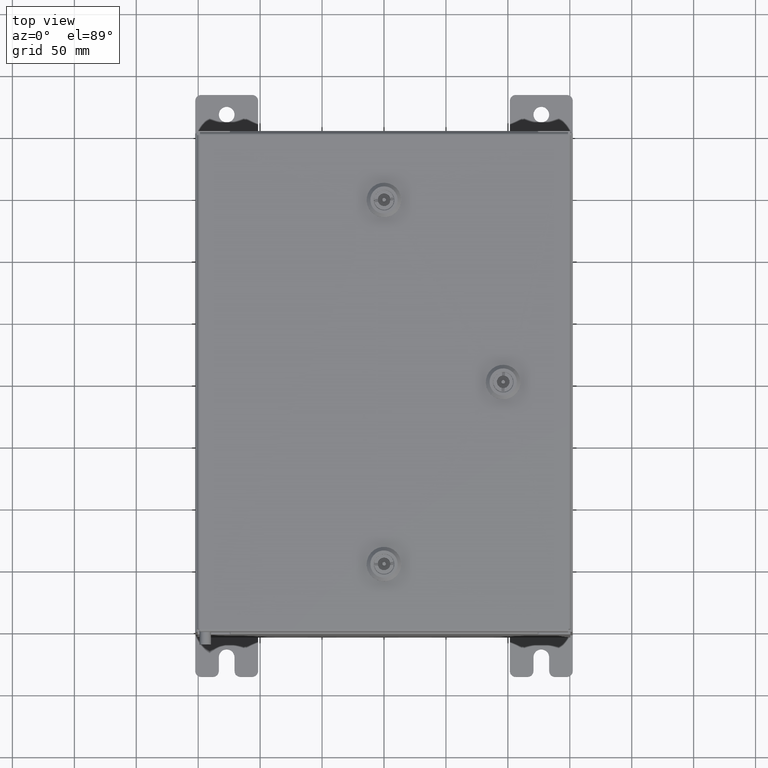
[diagram: clean part render]
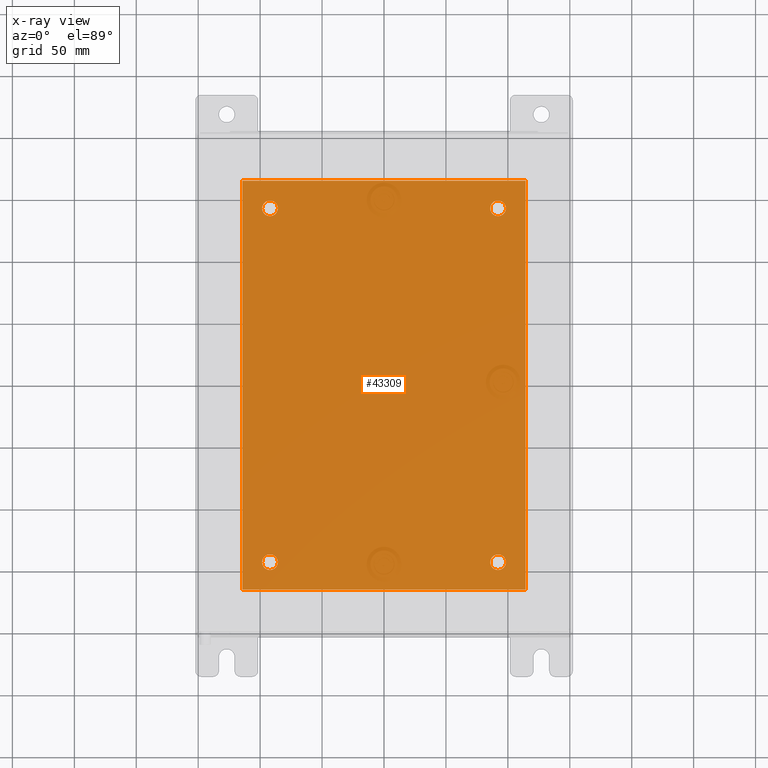
[diagram: x-ray — body ghosted, one internal face saturated and labeled with its STEP entity id]
A machine part, top view, then the same camera in x-ray: the body is ghosted and one INTERNAL B-rep face — a face not visible from any outside direction — is saturated and labeled: STEP entity #43309.
In plain terms, the highlighted planar face has unit normal (0, 0, -1).
Its self-contained STEP definition (entity closure, byte-faithful):
#202 = CARTESIAN_POINT ( 'NONE',  ( -3.875000000000000000, -5.625000000000003600, -0.1039999999999999800 ) ) ;
#738 = DIRECTION ( 'NONE',  ( -1.000000000000000000, 0.0000000000000000000, 0.0000000000000000000 ) ) ;
#1234 = VERTEX_POINT ( 'NONE', #14153 ) ;
#1312 = VECTOR ( 'NONE', #46536, 39.37007874015748100 ) ;
#2422 = VERTEX_POINT ( 'NONE', #23166 ) ;
#2606 = EDGE_CURVE ( 'NONE', #1234, #35636, #38056, .T. ) ;
#3452 = CARTESIAN_POINT ( 'NONE',  ( -4.499999999999998200, 6.500000000000000900, -0.1039999999999999800 ) ) ;
#3638 = LINE ( 'NONE', #42720, #40114 ) ;
#3713 = CIRCLE ( 'NONE', #48493, 0.2499999999999998100 ) ;
#4463 = CARTESIAN_POINT ( 'NONE',  ( -3.625000000000000400, -5.625000000000003600, -0.1039999999999999800 ) ) ;
#6095 = CARTESIAN_POINT ( 'NONE',  ( -3.625000000000000400, -5.625000000000003600, -0.1039999999999999800 ) ) ;
#7248 = AXIS2_PLACEMENT_3D ( 'NONE', #4463, #37719, #9212 ) ;
#7479 = EDGE_CURVE ( 'NONE', #19775, #10276, #39264, .T. ) ;
#8386 = ORIENTED_EDGE ( 'NONE', *, *, #39971, .T. ) ;
#8613 = FACE_BOUND ( 'NONE', #55634, .T. ) ;
#9212 = DIRECTION ( 'NONE',  ( -1.000000000000000000, 0.0000000000000000000, 0.0000000000000000000 ) ) ;
#9740 = PLANE ( 'NONE',  #52028 ) ;
#9763 = EDGE_CURVE ( 'NONE', #57261, #2422, #36509, .T. ) ;
#9880 = VERTEX_POINT ( 'NONE', #47507 ) ;
#9894 = CARTESIAN_POINT ( 'NONE',  ( -4.499999999999998200, 6.500000000000000900, -0.1039999999999999800 ) ) ;
#10000 = AXIS2_PLACEMENT_3D ( 'NONE', #22978, #56336, #27744 ) ;
#10276 = VERTEX_POINT ( 'NONE', #44786 ) ;
#10840 = DIRECTION ( 'NONE',  ( -1.000000000000000000, 0.0000000000000000000, 0.0000000000000000000 ) ) ;
#11326 = EDGE_CURVE ( 'NONE', #31851, #9880, #3713, .T. ) ;
#11809 = ORIENTED_EDGE ( 'NONE', *, *, #7479, .F. ) ;
#12419 = CARTESIAN_POINT ( 'NONE',  ( -3.625000000000000400, 5.625000000000003600, -0.1039999999999999800 ) ) ;
#13395 = VERTEX_POINT ( 'NONE', #37003 ) ;
#14153 = CARTESIAN_POINT ( 'NONE',  ( 4.500000000000001800, 6.500000000000000900, -0.1039999999999999800 ) ) ;
#14764 = CARTESIAN_POINT ( 'NONE',  ( 3.625000000000000400, 5.625000000000003600, -0.1039999999999999800 ) ) ;
#17210 = DIRECTION ( 'NONE',  ( -1.000000000000000000, 0.0000000000000000000, 0.0000000000000000000 ) ) ;
#18112 = EDGE_LOOP ( 'NONE', ( #26507, #8386 ) ) ;
#18358 = CARTESIAN_POINT ( 'NONE',  ( 3.625000000000000400, -5.625000000000003600, -0.1039999999999999800 ) ) ;
#18546 = CIRCLE ( 'NONE', #29706, 0.2499999999999987000 ) ;
#18653 = VERTEX_POINT ( 'NONE', #202 ) ;
#19301 = CARTESIAN_POINT ( 'NONE',  ( -4.499999999999998200, -6.499999999999999100, -0.1039999999999999800 ) ) ;
#19319 = DIRECTION ( 'NONE',  ( 0.0000000000000000000, 0.0000000000000000000, -1.000000000000000000 ) ) ;
#19566 = DIRECTION ( 'NONE',  ( -1.000000000000000000, 0.0000000000000000000, 0.0000000000000000000 ) ) ;
#19775 = VERTEX_POINT ( 'NONE', #19301 ) ;
#20117 = DIRECTION ( 'NONE',  ( -0.0000000000000000000, -1.000000000000000000, -0.0000000000000000000 ) ) ;
#21031 = ORIENTED_EDGE ( 'NONE', *, *, #22742, .F. ) ;
#21314 = FACE_BOUND ( 'NONE', #18112, .T. ) ;
#22742 = EDGE_CURVE ( 'NONE', #35636, #19775, #39839, .T. ) ;
#22978 = CARTESIAN_POINT ( 'NONE',  ( 3.625000000000000400, -5.625000000000003600, -0.1039999999999999800 ) ) ;
#23040 = CIRCLE ( 'NONE', #44975, 0.2499999999999998100 ) ;
#23147 = DIRECTION ( 'NONE',  ( -1.000000000000000000, 0.0000000000000000000, 0.0000000000000000000 ) ) ;
#23166 = CARTESIAN_POINT ( 'NONE',  ( 3.375000000000001800, -5.625000000000003600, -0.1039999999999999800 ) ) ;
#23900 = CARTESIAN_POINT ( 'NONE',  ( 0.0000000000000000000, 0.0000000000000000000, -0.1039999999999999800 ) ) ;
#24047 = ORIENTED_EDGE ( 'NONE', *, *, #29158, .T. ) ;
#24872 = AXIS2_PLACEMENT_3D ( 'NONE', #14764, #48059, #19566 ) ;
#26355 = DIRECTION ( 'NONE',  ( -0.0000000000000000000, -0.0000000000000000000, 1.000000000000000000 ) ) ;
#26507 = ORIENTED_EDGE ( 'NONE', *, *, #34210, .T. ) ;
#27119 = VECTOR ( 'NONE', #20117, 39.37007874015748100 ) ;
#27744 = DIRECTION ( 'NONE',  ( -1.000000000000000000, 0.0000000000000000000, 0.0000000000000000000 ) ) ;
#29125 = CIRCLE ( 'NONE', #37227, 0.2499999999999998100 ) ;
#29156 = DIRECTION ( 'NONE',  ( -0.0000000000000000000, -0.0000000000000000000, 1.000000000000000000 ) ) ;
#29158 = EDGE_CURVE ( 'NONE', #2422, #57261, #61168, .T. ) ;
#29568 = ORIENTED_EDGE ( 'NONE', *, *, #2606, .F. ) ;
#29667 = AXIS2_PLACEMENT_3D ( 'NONE', #18358, #51713, #23147 ) ;
#29706 = AXIS2_PLACEMENT_3D ( 'NONE', #54937, #26355, #59688 ) ;
#30538 = CARTESIAN_POINT ( 'NONE',  ( -3.375000000000000400, 5.625000000000003600, -0.1039999999999999800 ) ) ;
#31851 = VERTEX_POINT ( 'NONE', #30538 ) ;
#32884 = EDGE_CURVE ( 'NONE', #13395, #60032, #60501, .T. ) ;
#33288 = ORIENTED_EDGE ( 'NONE', *, *, #49267, .T. ) ;
#33335 = DIRECTION ( 'NONE',  ( 0.0000000000000000000, 1.000000000000000000, 0.0000000000000000000 ) ) ;
#33764 = EDGE_LOOP ( 'NONE', ( #53796, #11809, #21031, #29568 ) ) ;
#33902 = EDGE_LOOP ( 'NONE', ( #43741, #24047 ) ) ;
#33936 = FACE_BOUND ( 'NONE', #45195, .T. ) ;
#34210 = EDGE_CURVE ( 'NONE', #38525, #18653, #29125, .T. ) ;
#35636 = VERTEX_POINT ( 'NONE', #9894 ) ;
#36509 = CIRCLE ( 'NONE', #29667, 0.2499999999999987000 ) ;
#36567 = CARTESIAN_POINT ( 'NONE',  ( 3.874999999999999100, -5.625000000000003600, -0.1039999999999999800 ) ) ;
#37003 = CARTESIAN_POINT ( 'NONE',  ( 3.375000000000001800, 5.625000000000003600, -0.1039999999999999800 ) ) ;
#37227 = AXIS2_PLACEMENT_3D ( 'NONE', #6095, #39372, #10840 ) ;
#37531 = DIRECTION ( 'NONE',  ( -1.000000000000000000, -0.0000000000000000000, -0.0000000000000000000 ) ) ;
#37719 = DIRECTION ( 'NONE',  ( -0.0000000000000000000, -0.0000000000000000000, 1.000000000000000000 ) ) ;
#38056 = LINE ( 'NONE', #3452, #49236 ) ;
#38525 = VERTEX_POINT ( 'NONE', #51695 ) ;
#39264 = LINE ( 'NONE', #41769, #1312 ) ;
#39372 = DIRECTION ( 'NONE',  ( -0.0000000000000000000, -0.0000000000000000000, 1.000000000000000000 ) ) ;
#39839 = LINE ( 'NONE', #53474, #27119 ) ;
#39971 = EDGE_CURVE ( 'NONE', #18653, #38525, #41593, .T. ) ;
#40038 = EDGE_CURVE ( 'NONE', #10276, #1234, #3638, .T. ) ;
#40060 = CARTESIAN_POINT ( 'NONE',  ( 3.874999999999999100, 5.625000000000003600, -0.1039999999999999800 ) ) ;
#40114 = VECTOR ( 'NONE', #33335, 39.37007874015748100 ) ;
#41593 = CIRCLE ( 'NONE', #7248, 0.2499999999999998100 ) ;
#41769 = CARTESIAN_POINT ( 'NONE',  ( -4.499999999999998200, -6.499999999999999100, -0.1039999999999999800 ) ) ;
#42720 = CARTESIAN_POINT ( 'NONE',  ( 4.500000000000001800, -6.499999999999999100, -0.1039999999999999800 ) ) ;
#43309 = ADVANCED_FACE ( 'NONE', ( #21314, #57805, #33936, #8613, #45117 ), #9740, .T. ) ;
#43741 = ORIENTED_EDGE ( 'NONE', *, *, #9763, .T. ) ;
#44786 = CARTESIAN_POINT ( 'NONE',  ( 4.500000000000001800, -6.499999999999999100, -0.1039999999999999800 ) ) ;
#44975 = AXIS2_PLACEMENT_3D ( 'NONE', #57732, #29156, #738 ) ;
#45117 = FACE_OUTER_BOUND ( 'NONE', #33764, .T. ) ;
#45195 = EDGE_LOOP ( 'NONE', ( #57590, #56301 ) ) ;
#45713 = DIRECTION ( 'NONE',  ( -0.0000000000000000000, -0.0000000000000000000, 1.000000000000000000 ) ) ;
#45728 = ORIENTED_EDGE ( 'NONE', *, *, #11326, .T. ) ;
#46536 = DIRECTION ( 'NONE',  ( 1.000000000000000000, 0.0000000000000000000, 0.0000000000000000000 ) ) ;
#47507 = CARTESIAN_POINT ( 'NONE',  ( -3.875000000000000000, 5.625000000000003600, -0.1039999999999999800 ) ) ;
#48059 = DIRECTION ( 'NONE',  ( -0.0000000000000000000, -0.0000000000000000000, 1.000000000000000000 ) ) ;
#48493 = AXIS2_PLACEMENT_3D ( 'NONE', #12419, #45713, #17210 ) ;
#49236 = VECTOR ( 'NONE', #37531, 39.37007874015748100 ) ;
#49267 = EDGE_CURVE ( 'NONE', #9880, #31851, #23040, .T. ) ;
#51695 = CARTESIAN_POINT ( 'NONE',  ( -3.375000000000000400, -5.625000000000003600, -0.1039999999999999800 ) ) ;
#51713 = DIRECTION ( 'NONE',  ( -0.0000000000000000000, -0.0000000000000000000, 1.000000000000000000 ) ) ;
#52028 = AXIS2_PLACEMENT_3D ( 'NONE', #23900, #19319, #52677 ) ;
#52677 = DIRECTION ( 'NONE',  ( -1.000000000000000000, 0.0000000000000000000, -0.0000000000000000000 ) ) ;
#53474 = CARTESIAN_POINT ( 'NONE',  ( -4.499999999999998200, -6.499999999999999100, -0.1039999999999999800 ) ) ;
#53796 = ORIENTED_EDGE ( 'NONE', *, *, #40038, .F. ) ;
#54937 = CARTESIAN_POINT ( 'NONE',  ( 3.625000000000000400, 5.625000000000003600, -0.1039999999999999800 ) ) ;
#55634 = EDGE_LOOP ( 'NONE', ( #45728, #33288 ) ) ;
#56301 = ORIENTED_EDGE ( 'NONE', *, *, #32884, .T. ) ;
#56336 = DIRECTION ( 'NONE',  ( -0.0000000000000000000, -0.0000000000000000000, 1.000000000000000000 ) ) ;
#57261 = VERTEX_POINT ( 'NONE', #36567 ) ;
#57590 = ORIENTED_EDGE ( 'NONE', *, *, #61650, .T. ) ;
#57732 = CARTESIAN_POINT ( 'NONE',  ( -3.625000000000000400, 5.625000000000003600, -0.1039999999999999800 ) ) ;
#57805 = FACE_BOUND ( 'NONE', #33902, .T. ) ;
#59688 = DIRECTION ( 'NONE',  ( -1.000000000000000000, 0.0000000000000000000, 0.0000000000000000000 ) ) ;
#60032 = VERTEX_POINT ( 'NONE', #40060 ) ;
#60501 = CIRCLE ( 'NONE', #24872, 0.2499999999999987000 ) ;
#61168 = CIRCLE ( 'NONE', #10000, 0.2499999999999987000 ) ;
#61650 = EDGE_CURVE ( 'NONE', #60032, #13395, #18546, .T. ) ;